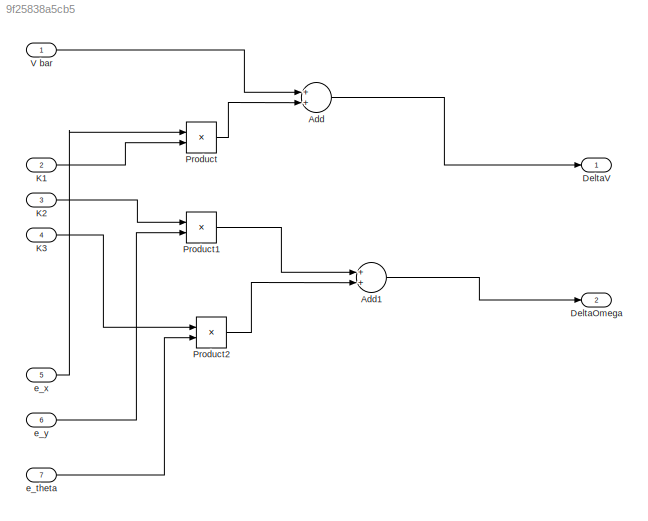
MODEL slx_9f25838a5cb5
KIND model
CONFIG AbsTol = auto
CONFIG EnableMultiTasking = off
CONFIG FixedStep = auto
CONFIG MaxStep = auto
CONFIG MinStep = auto
CONFIG RelTol = 1e-3
CONFIG SampleTimeConstraint = Unconstrained
CONFIG Solver = VariableStepAuto
CONFIG SolverName = VariableStepAuto
CONFIG StartTime = 0.0
CONFIG StopTime = 10.0
BLOCK [Sum] Add
  InputSameDT = off
  OutDataTypeStr = Inherit: Inherit via internal rule
  Ports = [2, 1]
  SaturateOnIntegerOverflow = off
BLOCK [Sum] Add1
  InputSameDT = off
  OutDataTypeStr = Inherit: Inherit via internal rule
  Ports = [2, 1]
  SaturateOnIntegerOverflow = off
BLOCK [Outport] DeltaOmega 
  IconDisplay = Port number
  Port = 2
BLOCK [Outport] DeltaV
  IconDisplay = Port number
BLOCK [Inport] K1 
  IconDisplay = Port number
  Port = 2
BLOCK [Inport] K2 
  IconDisplay = Port number
  Port = 3
BLOCK [Inport] K3 
  IconDisplay = Port number
  Port = 4
BLOCK [Product] Product
  InputSameDT = off
  OutDataTypeStr = Inherit: Inherit via internal rule
  Ports = [2, 1]
  RndMeth = Floor
  SaturateOnIntegerOverflow = off
BLOCK [Product] Product1
  InputSameDT = off
  OutDataTypeStr = Inherit: Inherit via internal rule
  Ports = [2, 1]
  RndMeth = Floor
  SaturateOnIntegerOverflow = off
BLOCK [Product] Product2
  InputSameDT = off
  OutDataTypeStr = Inherit: Inherit via internal rule
  Ports = [2, 1]
  RndMeth = Floor
  SaturateOnIntegerOverflow = off
BLOCK [Inport] V bar 
  IconDisplay = Port number
BLOCK [Inport] e_theta 
  IconDisplay = Port number
  Port = 7
BLOCK [Inport] e_x 
  IconDisplay = Port number
  Port = 5
BLOCK [Inport] e_y 
  IconDisplay = Port number
  Port = 6
LINE Add1:1 -> DeltaOmega :1
LINE Add:1 -> DeltaV:1
LINE K1 :1 -> Product:2
LINE K2 :1 -> Product1:1
LINE K3 :1 -> Product2:1
LINE Product1:1 -> Add1:1
LINE Product2:1 -> Add1:2
LINE Product:1 -> Add:2
LINE V bar :1 -> Add:1
LINE e_theta :1 -> Product2:2
LINE e_x :1 -> Product:1
LINE e_y :1 -> Product1:2
